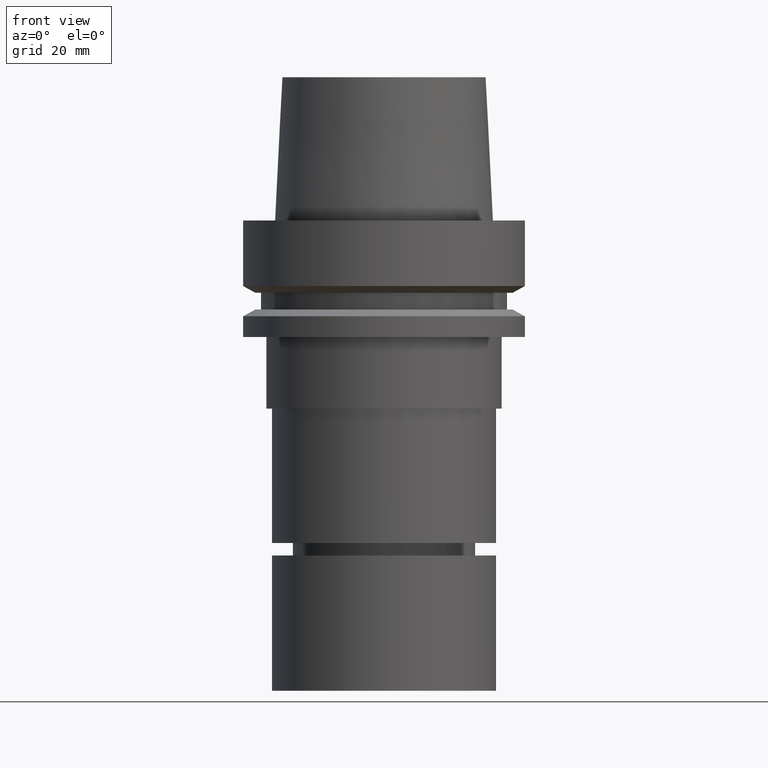
[diagram: clean part render]
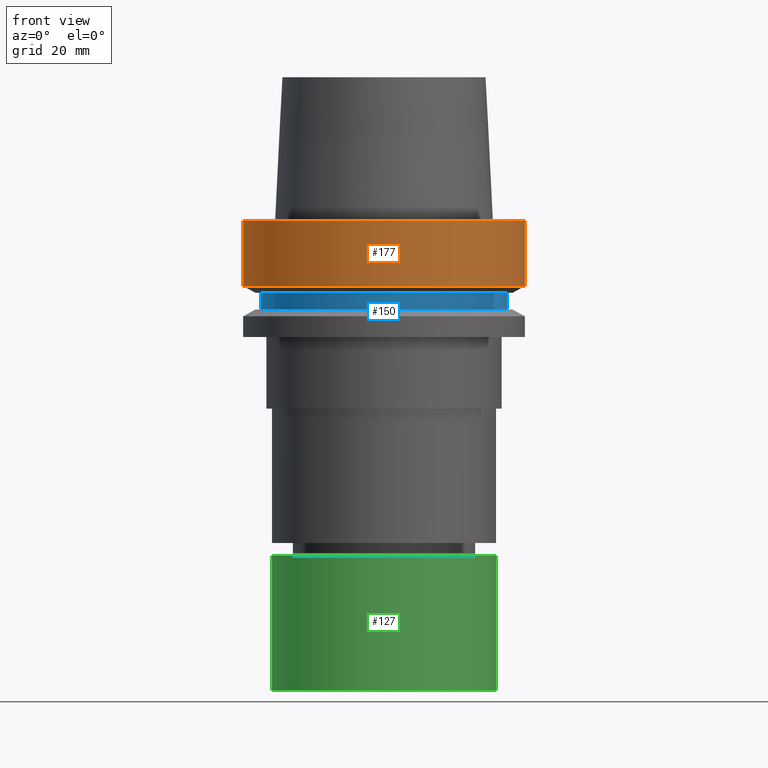
[diagram: same view with three faces highlighted in distinct colors, each labeled with its STEP entity id]
A machine part, front view with three faces highlighted in distinct colors.
Their STEP definitions:

[orange] entity #177 — the highlighted cylindrical surface (bore or boss wall) has radius 31.5 mm, axis along (-0, -0, 1).
#106=EDGE_CURVE('Unnamed[1]',#252,#252,#253,.T.);
#164=EDGE_CURVE('Unnamed[1]',#344,#344,#345,.T.);
#177=ADVANCED_FACE('Unnamed[1]',(#364,#365),#366,.T.);
#252=VERTEX_POINT('',#453);
#253=CIRCLE('',#454,31.5000000000001);
#344=VERTEX_POINT('',#567);
#345=CIRCLE('',#568,31.5);
#364=FACE_BOUND('',#592,.T.);
#365=FACE_BOUND('',#593,.T.);
#366=CYLINDRICAL_SURFACE('',#594,31.5);
#453=CARTESIAN_POINT('',(-3.88267476788467E-031,31.5000000000001,3.85763741731417E-015));
#454=AXIS2_PLACEMENT_3D('',#666,#667,#668);
#567=CARTESIAN_POINT('',(8.95369947681261E-016,31.5,-14.6225009252407));
#568=AXIS2_PLACEMENT_3D('',#772,#773,#774);
#592=EDGE_LOOP('',(#794));
#593=EDGE_LOOP('',(#795));
#594=AXIS2_PLACEMENT_3D('',#796,#797,#798);
#666=CARTESIAN_POINT('',(0.0,0.0,0.0));
#667=DIRECTION('',(-6.12323399573677E-017,-1.22464679914735E-016,1.0));
#668=DIRECTION('',(-1.23259516440783E-032,1.0,1.22464679914735E-016));
#772=CARTESIAN_POINT('',(8.95369947681262E-016,1.79073989536252E-015,-14.6225009252407));
#773=DIRECTION('',(-6.12323399573677E-017,-1.22464679914735E-016,1.0));
#774=DIRECTION('',(-1.23259516440783E-032,1.0,1.22464679914735E-016));
#794=ORIENTED_EDGE('',*,*,#106,.F.);
#795=ORIENTED_EDGE('',*,*,#164,.T.);
#796=CARTESIAN_POINT('',(4.47684973840631E-016,8.95369947681262E-016,-7.31125046262035));
#797=DIRECTION('',(-6.12323399573677E-017,-1.22464679914735E-016,1.0));
#798=DIRECTION('',(-1.23259516440783E-032,1.0,1.22464679914735E-016));

[blue] entity #150 — the highlighted cylindrical surface (bore or boss wall) has radius 27.5 mm, axis along (-0, -0, 1).
#102=EDGE_CURVE('Unnamed[1]',#246,#246,#247,.T.);
#110=EDGE_CURVE('Unnamed[1]',#258,#258,#259,.T.);
#150=ADVANCED_FACE('Unnamed[1]',(#321,#322),#323,.T.);
#246=VERTEX_POINT('',#445);
#247=CIRCLE('',#446,27.4999999999989);
#258=VERTEX_POINT('',#461);
#259=CIRCLE('',#462,27.5);
#321=FACE_BOUND('',#539,.T.);
#322=FACE_BOUND('',#540,.T.);
#323=CYLINDRICAL_SURFACE('',#541,27.4999999999994);
#445=CARTESIAN_POINT('',(1.21699275665276E-015,27.4999999999989,-19.8750000000013));
#446=AXIS2_PLACEMENT_3D('',#660,#661,#662);
#461=CARTESIAN_POINT('',(9.87371481812537E-016,27.5,-16.1249999999997));
#462=AXIS2_PLACEMENT_3D('',#672,#673,#674);
#539=EDGE_LOOP('',(#744));
#540=EDGE_LOOP('',(#745));
#541=AXIS2_PLACEMENT_3D('',#746,#747,#748);
#660=CARTESIAN_POINT('',(1.21699275665276E-015,2.43398551330552E-015,-19.8750000000013));
#661=DIRECTION('',(-6.12323399573677E-017,-1.22464679914735E-016,1.0));
#662=DIRECTION('',(-1.23259516440783E-032,1.0,1.22464679914735E-016));
#672=CARTESIAN_POINT('',(9.87371481812538E-016,1.97474296362508E-015,-16.1249999999997));
#673=DIRECTION('',(-6.12323399573677E-017,-1.22464679914735E-016,1.0));
#674=DIRECTION('',(-1.23259516440783E-032,1.0,1.22464679914735E-016));
#744=ORIENTED_EDGE('',*,*,#110,.F.);
#745=ORIENTED_EDGE('',*,*,#102,.T.);
#746=CARTESIAN_POINT('',(1.10218211923265E-015,2.2043642384653E-015,-18.0000000000005));
#747=DIRECTION('',(-6.12323399573677E-017,-1.22464679914735E-016,1.0));
#748=DIRECTION('',(-1.23259516440783E-032,1.0,1.22464679914735E-016));

[green] entity #127 — the highlighted cylindrical surface (bore or boss wall) has radius 25 mm, axis along (0, 0, -1).
#86=EDGE_CURVE('Unnamed[1]',#224,#224,#225,.T.);
#127=ADVANCED_FACE('Unnamed[1]',(#284,#285),#286,.T.);
#132=EDGE_CURVE('Unnamed[1]',#293,#293,#294,.T.);
#224=VERTEX_POINT('',#418);
#225=CIRCLE('',#419,25.0);
#284=FACE_BOUND('',#494,.T.);
#285=FACE_BOUND('',#495,.T.);
#286=CYLINDRICAL_SURFACE('',#496,25.0);
#293=VERTEX_POINT('',#505);
#294=CIRCLE('',#506,25.0);
#418=CARTESIAN_POINT('',(6.4293956955236E-015,25.0,-105.0));
#419=AXIS2_PLACEMENT_3D('',#637,#638,#639);
#494=EDGE_LOOP('',(#700));
#495=EDGE_LOOP('',(#701));
#496=AXIS2_PLACEMENT_3D('',#702,#703,#704);
#505=CARTESIAN_POINT('',(4.5801790288111E-015,25.0,-74.8));
#506=AXIS2_PLACEMENT_3D('',#711,#712,#713);
#637=CARTESIAN_POINT('',(6.4293956955236E-015,1.28587913910472E-014,-105.0));
#638=DIRECTION('',(6.12323399573677E-017,1.22464679914735E-016,-1.0));
#639=DIRECTION('',(-1.23259516440783E-032,1.0,1.22464679914735E-016));
#700=ORIENTED_EDGE('',*,*,#86,.F.);
#701=ORIENTED_EDGE('',*,*,#132,.T.);
#702=CARTESIAN_POINT('',(5.50478736216735E-015,1.10095747243347E-014,-89.9));
#703=DIRECTION('',(6.12323399573677E-017,1.22464679914735E-016,-1.0));
#704=DIRECTION('',(-1.23259516440783E-032,1.0,1.22464679914735E-016));
#711=CARTESIAN_POINT('',(4.5801790288111E-015,9.1603580576222E-015,-74.8));
#712=DIRECTION('',(6.12323399573677E-017,1.22464679914735E-016,-1.0));
#713=DIRECTION('',(-1.23259516440783E-032,1.0,1.22464679914735E-016));